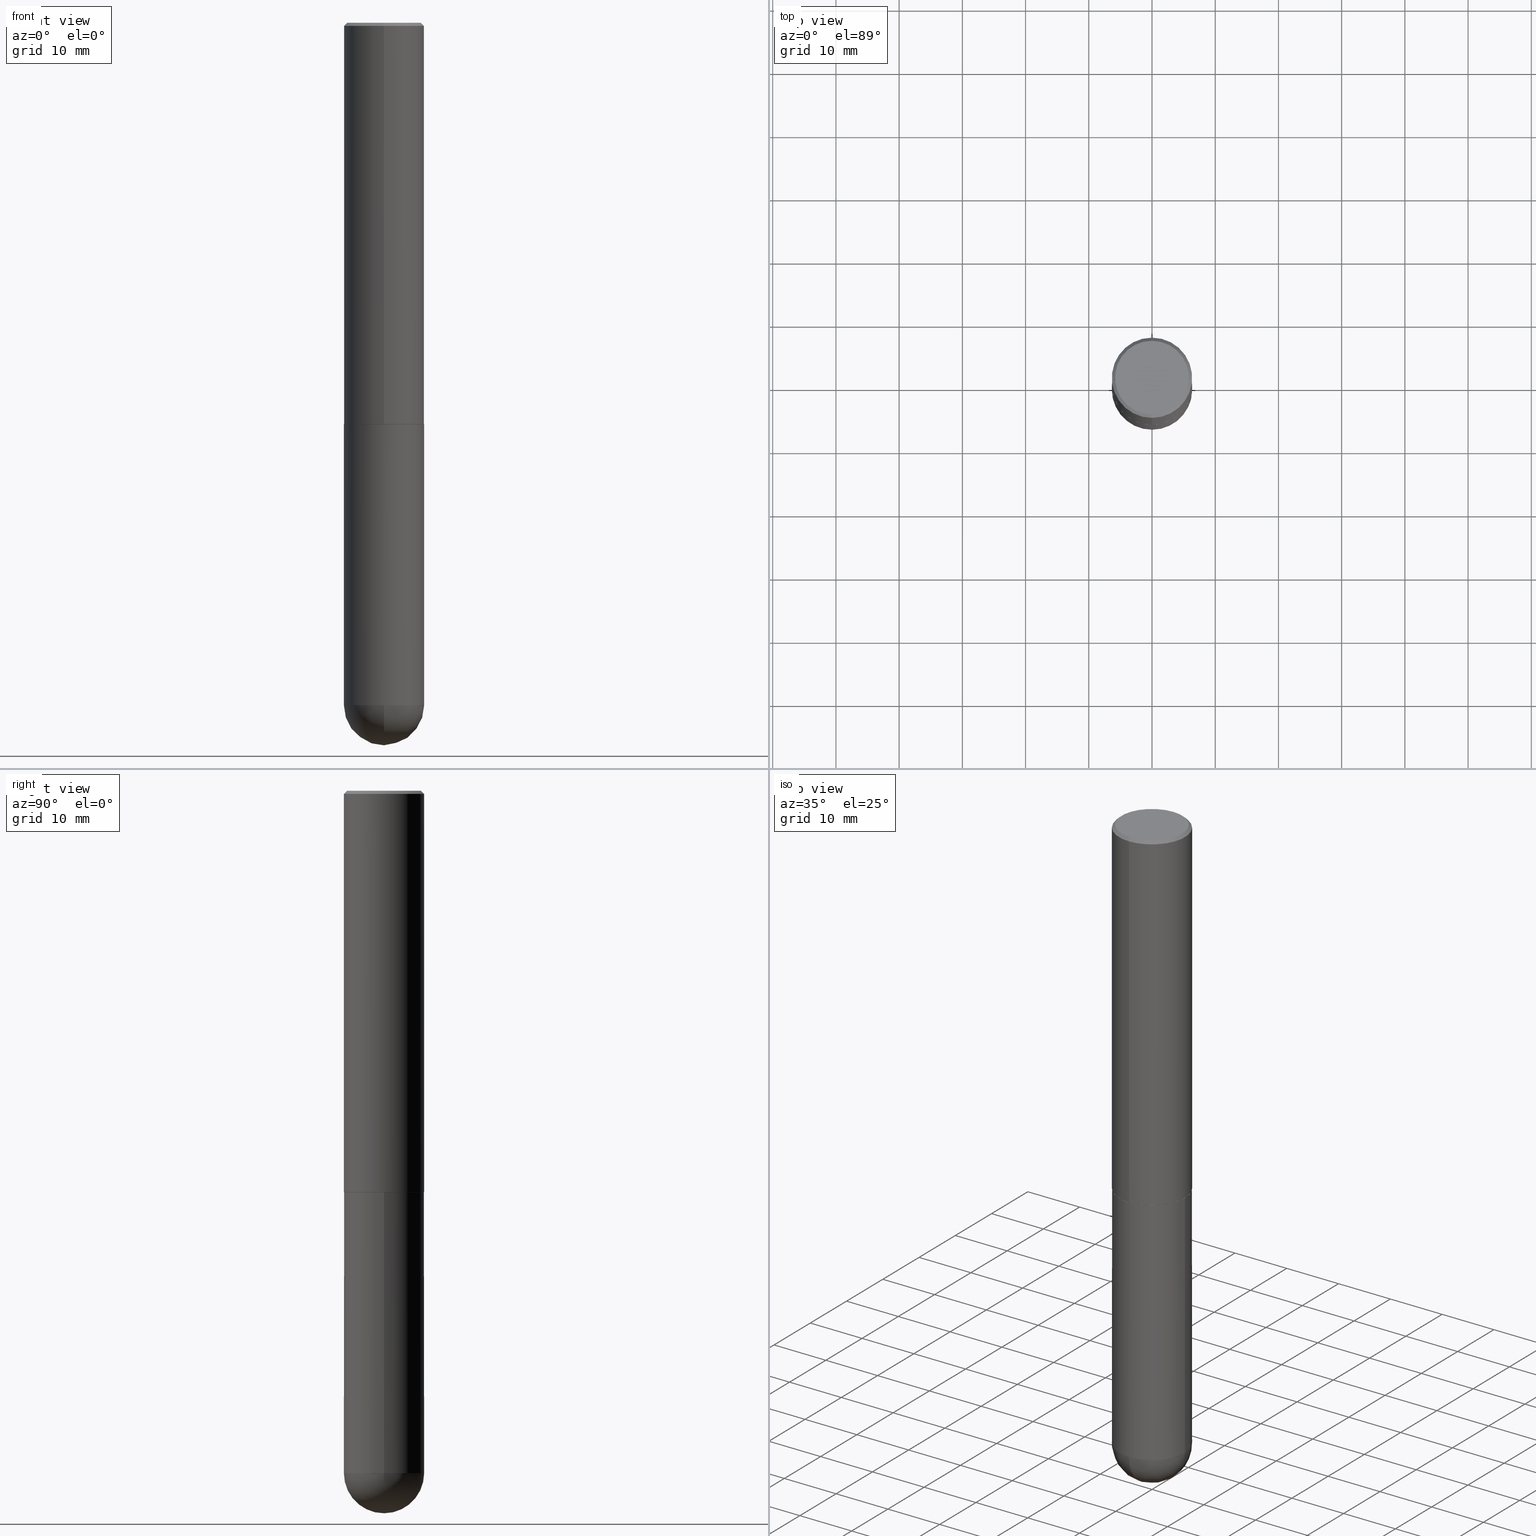
[diagram: canonical four-view strip — front | top / right | iso, engineering-drawing reading convention]
A machine part, canonical four-view strip (front | top / right | iso — engineering-drawing reading convention). The complete STEP part file that produces these views, byte-faithful:
ISO-10303-21;
HEADER;
FILE_DESCRIPTION (( 'STEP AP203' ),
    '1' );
FILE_NAME ('31776.STEP',
    '2024-02-21T16:52:00',
    ( '' ),
    ( '' ),
    'SwSTEP 2.0',
    'SolidWorks 2023',
    '' );
FILE_SCHEMA (( 'CONFIG_CONTROL_DESIGN' ));
ENDSEC;

DATA;
#1 = CARTESIAN_POINT ( 'NONE',  ( 0.000000000000000000, 0.000000000000000000, 0.000000000000000000 ) ) ;
#2 = CARTESIAN_POINT ( 'NONE',  ( -3.026864160722213020E-45, 4.321401483293435708E-31, 1.237721285492321868E-16 ) ) ;
#3 = EDGE_CURVE ( 'NONE', #49, #74, #329, .T. ) ;
#4 = CARTESIAN_POINT ( 'NONE',  ( 6.111338333036800677E-29, -8.725051781310170684E-15, -2.499000000000000110 ) ) ;
#5 = CYLINDRICAL_SURFACE ( 'NONE', #236, 0.2500000000000000000 ) ;
#6 = ADVANCED_FACE ( 'NONE', ( #114 ), #257, .T. ) ;
#7 = COORDINATED_UNIVERSAL_TIME_OFFSET ( 5, 0, .BEHIND. ) ;
#8 = ORIENTED_EDGE ( 'NONE', *, *, #174, .F. ) ;
#9 = APPROVAL ( #99, 'UNSPECIFIED' ) ;
#10 = CIRCLE ( 'NONE', #243, 0.2299999999999998435 ) ;
#11 = AXIS2_PLACEMENT_3D ( 'NONE', #4, #313, #385 ) ;
#12 =( NAMED_UNIT ( * ) SI_UNIT ( $, .STERADIAN. ) SOLID_ANGLE_UNIT ( ) );
#13 = COORDINATED_UNIVERSAL_TIME_OFFSET ( 5, 0, .BEHIND. ) ;
#14 = EDGE_LOOP ( 'NONE', ( #43, #80, #238, #306 ) ) ;
#15 = ORIENTED_EDGE ( 'NONE', *, *, #332, .F. ) ;
#16 = DATE_AND_TIME ( #273, #40 ) ;
#17 = ORIENTED_EDGE ( 'NONE', *, *, #215, .F. ) ;
#18 = ORIENTED_EDGE ( 'NONE', *, *, #334, .T. ) ;
#19 = CARTESIAN_POINT ( 'NONE',  ( 0.2500000000000000000, -1.745740669421566678E-15, 1.219044193948983948E-29 ) ) ;
#20 = PRODUCT_DEFINITION_SHAPE ( 'NONE', 'NONE',  #304 ) ;
#21 = CARTESIAN_POINT ( 'NONE',  ( 1.745740669421669032E-15, 0.2499999999999849842, -4.250000000000001776 ) ) ;
#22 = DIRECTION ( 'NONE',  ( 6.982962677686265922E-15, 1.000000000000000000, -3.491417279435842514E-15 ) ) ;
#23 = LINE ( 'NONE', #182, #104 ) ;
#24 = DIRECTION ( 'NONE',  ( 2.445513538630171527E-29, -3.491417279435842514E-15, -1.000000000000000000 ) ) ;
#25 = CARTESIAN_POINT ( 'NONE',  ( 1.006212264837294429E-28, -1.531297805822341912E-14, -4.250000000000000000 ) ) ;
#26 = CYLINDRICAL_SURFACE ( 'NONE', #67, 0.2500000000000000000 ) ;
#27 = AXIS2_PLACEMENT_3D ( 'NONE', #144, #112, #379 ) ;
#28 = VECTOR ( 'NONE', #279, 39.37007874015748143 ) ;
#29 = DIRECTION ( 'NONE',  ( 2.445513538630171807E-29, -3.491417279435842514E-15, -1.000000000000000000 ) ) ;
#30 = CARTESIAN_POINT ( 'NONE',  ( -1.738757706743818935E-15, -0.2490000000000087421, -2.499999999999999112 ) ) ;
#31 = ADVANCED_FACE ( 'NONE', ( #408 ), #255, .F. ) ;
#32 = CARTESIAN_POINT ( 'NONE',  ( 6.113672015462842613E-29, -8.728703347107864943E-15, -2.500000000000000000 ) ) ;
#33 = DIRECTION ( 'NONE',  ( -2.445468806185136597E-29, 3.491481338843145583E-15, 1.000000000000000000 ) ) ;
#34 = AXIS2_PLACEMENT_3D ( 'NONE', #83, #345, #185 ) ;
#35 = AXIS2_PLACEMENT_3D ( 'NONE', #90, #349, #319 ) ;
#36 = LENGTH_MEASURE_WITH_UNIT ( LENGTH_MEASURE( 0.02539999999999999897 ), #200 );
#37 = LINE ( 'NONE', #233, #336 ) ;
#38 = EDGE_CURVE ( 'NONE', #278, #271, #251, .T. ) ;
#39 = CARTESIAN_POINT ( 'NONE',  ( 1.745740669421566875E-15, 0.2499999999999999167, -0.02000000000000092676 ) ) ;
#40 = LOCAL_TIME ( 11, 52, 0.000000000000000000, #13 ) ;
#41 = ADVANCED_FACE ( 'NONE', ( #213 ), #318, .F. ) ;
#42 = COORDINATED_UNIVERSAL_TIME_OFFSET ( 5, 0, .BEHIND. ) ;
#43 = ORIENTED_EDGE ( 'NONE', *, *, #60, .F. ) ;
#44 = ORIENTED_EDGE ( 'NONE', *, *, #230, .F. ) ;
#45 = LOCAL_TIME ( 11, 52, 0.000000000000000000, #42 ) ;
#46 = ORIENTED_EDGE ( 'NONE', *, *, #230, .T. ) ;
#47 = ADVANCED_FACE ( 'NONE', ( #404 ), #216, .T. ) ;
#48 = ORIENTED_EDGE ( 'NONE', *, *, #161, .T. ) ;
#49 = VERTEX_POINT ( 'NONE', #56 ) ;
#50 = CARTESIAN_POINT ( 'NONE',  ( 1.006212264837294429E-28, -1.531297805822341912E-14, -4.250000000000000000 ) ) ;
#51 = CLOSED_SHELL ( 'NONE', ( #292, #113, #6, #47, #120, #362, #31, #227 ) ) ;
#52 = CARTESIAN_POINT ( 'NONE',  ( 0.000000000000000000, 0.000000000000000000, 0.000000000000000000 ) ) ;
#53 = VECTOR ( 'NONE', #382, 39.37007874015748143 ) ;
#54 = DIRECTION ( 'NONE',  ( 1.000000000000000000, -6.982962677686270655E-15, 0.000000000000000000 ) ) ;
#55 = CARTESIAN_POINT ( 'NONE',  ( -1.715124499442882299E-15, -0.2500000000000000555, -0.01999999999999918510 ) ) ;
#56 = CARTESIAN_POINT ( 'NONE',  ( 1.068417942853397052E-28, -1.617054030794486372E-14, -4.500000000000000888 ) ) ;
#57 = DIRECTION ( 'NONE',  ( -1.000000000000000000, 6.982962677686265922E-15, -4.883557194083113462E-29 ) ) ;
#58 = DIRECTION ( 'NONE',  ( -2.445513538630171807E-29, 3.491417279435842514E-15, 1.000000000000000000 ) ) ;
#59 = DIRECTION ( 'NONE',  ( -6.982962677686265133E-15, -1.000000000000000000, 4.388510833195603583E-15 ) ) ;
#60 = EDGE_CURVE ( 'NONE', #363, #390, #23, .T. ) ;
#61 = AXIS2_PLACEMENT_3D ( 'NONE', #1, #124, #89 ) ;
#62 = AXIS2_PLACEMENT_3D ( 'NONE', #407, #249, #373 ) ;
#63 = DIRECTION ( 'NONE',  ( 1.000000000000000000, -6.982962677686266711E-15, 0.000000000000000000 ) ) ;
#64 = CARTESIAN_POINT ( 'NONE',  ( 1.772804125721511886E-15, 0.2489999999999912561, -2.500000000000001332 ) ) ;
#65 = PERSON_AND_ORGANIZATION ( #195, #187 ) ;
#66 = AXIS2_PLACEMENT_3D ( 'NONE', #247, #223, #309 ) ;
#67 = AXIS2_PLACEMENT_3D ( 'NONE', #148, #283, #119 ) ;
#68 = CALENDAR_DATE ( 2024, 21, 2 ) ;
#69 = DATE_AND_TIME ( #68, #130 ) ;
#70 = UNCERTAINTY_MEASURE_WITH_UNIT (LENGTH_MEASURE( 1.000000000000000082E-05 ), #94, 'distance_accuracy_value', 'NONE');
#71 = AXIS2_PLACEMENT_3D ( 'NONE', #254, #125, #92 ) ;
#72 = PERSON_AND_ORGANIZATION ( #195, #187 ) ;
#73 = ORIENTED_EDGE ( 'NONE', *, *, #340, .T. ) ;
#74 = VERTEX_POINT ( 'NONE', #21 ) ;
#75 = EDGE_CURVE ( 'NONE', #246, #390, #374, .T. ) ;
#76 = ORIENTED_EDGE ( 'NONE', *, *, #3, .F. ) ;
#77 = CC_DESIGN_DATE_AND_TIME_ASSIGNMENT ( #128, #262, ( #304 ) ) ;
#78 = SECURITY_CLASSIFICATION_LEVEL ( 'unclassified' ) ;
#79 = AXIS2_PLACEMENT_3D ( 'NONE', #2, #289, #342 ) ;
#80 = ORIENTED_EDGE ( 'NONE', *, *, #197, .T. ) ;
#81 = PERSON_AND_ORGANIZATION ( #195, #187 ) ;
#82 = ORIENTED_EDGE ( 'NONE', *, *, #136, .T. ) ;
#83 = CARTESIAN_POINT ( 'NONE',  ( 4.891027077260356751E-31, -6.982834558871704009E-17, -0.02000000000000005593 ) ) ;
#84 = DIRECTION ( 'NONE',  ( -2.445513538630171807E-29, 3.491417279435842514E-15, 1.000000000000000000 ) ) ;
#85 = CARTESIAN_POINT ( 'NONE',  ( -0.2500000000000000000, -1.000739267919536563E-14, -2.500000000000000000 ) ) ;
#86 = AXIS2_PLACEMENT_3D ( 'NONE', #256, #281, #312 ) ;
#87 = CARTESIAN_POINT ( 'NONE',  ( 6.113783846575430919E-29, -8.728543198589606481E-15, -2.500000000000000000 ) ) ;
#88 = EDGE_CURVE ( 'NONE', #74, #278, #186, .T. ) ;
#89 = DIRECTION ( 'NONE',  ( -6.982962677686266711E-15, -1.000000000000000000, 3.491417279435842908E-15 ) ) ;
#90 = CARTESIAN_POINT ( 'NONE',  ( 4.891027077260356751E-31, -6.982834558871704009E-17, -0.02000000000000005593 ) ) ;
#91 = DIRECTION ( 'NONE',  ( -6.982962677686265922E-15, -1.000000000000000000, 4.370956789862816416E-15 ) ) ;
#92 = DIRECTION ( 'NONE',  ( 1.000000000000000000, -6.982962677686270655E-15, 0.000000000000000000 ) ) ;
#93 = CC_DESIGN_SECURITY_CLASSIFICATION ( #410, ( #250 ) ) ;
#94 =( CONVERSION_BASED_UNIT ( 'INCH', #36 ) LENGTH_UNIT ( ) NAMED_UNIT ( #405 ) );
#95 = DIRECTION ( 'NONE',  ( -6.982962677686265133E-15, -1.000000000000000000, 4.388510833195603583E-15 ) ) ;
#96 = ORIENTED_EDGE ( 'NONE', *, *, #370, .F. ) ;
#97 = APPROVAL_STATUS ( 'not_yet_approved' ) ;
#98 = APPROVAL_PERSON_ORGANIZATION ( #389, #9, #166 ) ;
#99 = APPROVAL_STATUS ( 'not_yet_approved' ) ;
#100 = MANIFOLD_SOLID_BREP ( 'Body-Move/Copy2[1]', #151 ) ;
#101 = EDGE_CURVE ( 'NONE', #398, #339, #10, .T. ) ;
#102 = CALENDAR_DATE ( 2024, 21, 2 ) ;
#103 = ORIENTED_EDGE ( 'NONE', *, *, #75, .F. ) ;
#104 = VECTOR ( 'NONE', #58, 39.37007874015748143 ) ;
#105 = CIRCLE ( 'NONE', #79, 0.2299999999999998435 ) ;
#106 = PERSON_AND_ORGANIZATION ( #195, #187 ) ;
#107 = ORIENTED_EDGE ( 'NONE', *, *, #136, .F. ) ;
#108 = ORIENTED_EDGE ( 'NONE', *, *, #101, .F. ) ;
#109 = EDGE_LOOP ( 'NONE', ( #275, #274 ) ) ;
#110 = CIRCLE ( 'NONE', #264, 0.2500000000000000000 ) ;
#111 = ORIENTED_EDGE ( 'NONE', *, *, #232, .F. ) ;
#112 = DIRECTION ( 'NONE',  ( 2.445513538630171807E-29, -3.491417279435842514E-15, -1.000000000000000000 ) ) ;
#113 = ADVANCED_FACE ( 'NONE', ( #406 ), #217, .T. ) ;
#114 = FACE_OUTER_BOUND ( 'NONE', #241, .T. ) ;
#115 = CARTESIAN_POINT ( 'NONE',  ( 1.006212264837294429E-28, -1.531297805822341912E-14, -4.250000000000000000 ) ) ;
#116 = DIRECTION ( 'NONE',  ( 1.000000000000000000, -6.982962677686265922E-15, 4.883557194083112340E-29 ) ) ;
#117 = AXIS2_PLACEMENT_3D ( 'NONE', #87, #248, #371 ) ;
#118 = CONICAL_SURFACE ( 'NONE', #323, 0.2489999999999999991, 0.7853981633976873100 ) ;
#119 = DIRECTION ( 'NONE',  ( 1.000000000000000000, -6.982962677686266711E-15, 4.876176775795935793E-29 ) ) ;
#120 = ADVANCED_FACE ( 'NONE', ( #343 ), #180, .T. ) ;
#121 = CARTESIAN_POINT ( 'NONE',  ( 6.113672015462842613E-29, -8.728703347107864943E-15, -2.500000000000000000 ) ) ;
#122 = CARTESIAN_POINT ( 'NONE',  ( -1.738757706743818935E-15, -0.2490000000000087421, -2.499999999999999112 ) ) ;
#123 = APPROVAL ( #305, 'UNSPECIFIED' ) ;
#124 = DIRECTION ( 'NONE',  ( -2.445513538630171807E-29, 3.491417279435842514E-15, 1.000000000000000000 ) ) ;
#125 = DIRECTION ( 'NONE',  ( -2.445468806185136597E-29, 3.491481338843145583E-15, 1.000000000000000000 ) ) ;
#126 = DIRECTION ( 'NONE',  ( -1.000000000000000000, 7.105427357601001070E-15, -4.926315508542082329E-29 ) ) ;
#127 = SPHERICAL_SURFACE ( 'NONE', #203, 0.2500000000000001110 ) ;
#128 = DATE_AND_TIME ( #102, #170 ) ;
#129 = ORIENTED_EDGE ( 'NONE', *, *, #161, .F. ) ;
#130 = LOCAL_TIME ( 11, 52, 0.000000000000000000, #162 ) ;
#131 = EDGE_CURVE ( 'NONE', #366, #363, #298, .T. ) ;
#132 = CARTESIAN_POINT ( 'NONE',  ( -1.646519519465166573E-15, -0.2299999999999998435, 9.267981028194753931E-16 ) ) ;
#133 = EDGE_LOOP ( 'NONE', ( #141, #111 ) ) ;
#134 = PERSON_AND_ORGANIZATION_ROLE ( 'classification_officer' ) ;
#135 = ORIENTED_EDGE ( 'NONE', *, *, #38, .F. ) ;
#136 = EDGE_CURVE ( 'NONE', #398, #246, #282, .T. ) ;
#137 = AXIS2_PLACEMENT_3D ( 'NONE', #314, #381, #91 ) ;
#138 = AXIS2_PLACEMENT_3D ( 'NONE', #50, #126, #320 ) ;
#139 = ORIENTED_EDGE ( 'NONE', *, *, #88, .F. ) ;
#140 = VERTEX_POINT ( 'NONE', #351 ) ;
#141 = ORIENTED_EDGE ( 'NONE', *, *, #267, .F. ) ;
#142 = AXIS2_PLACEMENT_3D ( 'NONE', #25, #116, #155 ) ;
#143 = AXIS2_PLACEMENT_3D ( 'NONE', #184, #380, #315 ) ;
#144 = CARTESIAN_POINT ( 'NONE',  ( 4.891027077260356751E-31, -6.982834558871704009E-17, -0.02000000000000005593 ) ) ;
#145 = ORIENTED_EDGE ( 'NONE', *, *, #60, .T. ) ;
#146 = LINE ( 'NONE', #122, #53 ) ;
#147 = DIRECTION ( 'NONE',  ( -6.982962677686266711E-15, -1.000000000000000000, 3.491417279435842908E-15 ) ) ;
#148 = CARTESIAN_POINT ( 'NONE',  ( 0.000000000000000000, 0.000000000000000000, 0.000000000000000000 ) ) ;
#149 = EDGE_CURVE ( 'NONE', #302, #271, #401, .T. ) ;
#150 = DIRECTION ( 'NONE',  ( -6.982962677686265922E-15, -1.000000000000000000, 3.491417279435842514E-15 ) ) ;
#151 = CLOSED_SHELL ( 'NONE', ( #287, #300, #220, #41, #202 ) ) ;
#152 = VECTOR ( 'NONE', #153, 39.37007874015748143 ) ;
#153 = DIRECTION ( 'NONE',  ( 5.024295867789263036E-15, 0.7071067811867189912, 0.7071067811863760433 ) ) ;
#154 = CC_DESIGN_PERSON_AND_ORGANIZATION_ASSIGNMENT ( #325, #265, ( #304 ) ) ;
#155 = DIRECTION ( 'NONE',  ( 6.982962677686266711E-15, 1.000000000000000000, 0.000000000000000000 ) ) ;
#156 = FACE_OUTER_BOUND ( 'NONE', #280, .T. ) ;
#157 = DIRECTION ( 'NONE',  ( 1.000000000000000000, -6.982962677686266711E-15, 0.000000000000000000 ) ) ;
#158 = DIRECTION ( 'NONE',  ( 1.000000000000000000, -6.982962677686266711E-15, 4.876176775795935793E-29 ) ) ;
#159 = CARTESIAN_POINT ( 'NONE',  ( 1.745740669421566875E-15, 0.2499999999999999167, -0.02000000000000092676 ) ) ;
#160 = AXIS2_PLACEMENT_3D ( 'NONE', #412, #24, #22 ) ;
#161 = EDGE_CURVE ( 'NONE', #140, #302, #189, .T. ) ;
#162 = COORDINATED_UNIVERSAL_TIME_OFFSET ( 5, 0, .BEHIND. ) ;
#163 = VECTOR ( 'NONE', #225, 39.37007874015748143 ) ;
#164 = APPROVAL_PERSON_ORGANIZATION ( #295, #183, #358 ) ;
#165 = CARTESIAN_POINT ( 'NONE',  ( 1.776356839400282414E-15, 0.2499999999999915345, -2.499000000000001442 ) ) ;
#166 = APPROVAL_ROLE ( '' ) ;
#167 = ORIENTED_EDGE ( 'NONE', *, *, #267, .T. ) ;
#168 = CC_DESIGN_PERSON_AND_ORGANIZATION_ASSIGNMENT ( #81, #134, ( #410 ) ) ;
#169 = ORIENTED_EDGE ( 'NONE', *, *, #353, .F. ) ;
#170 = LOCAL_TIME ( 11, 52, 0.000000000000000000, #7 ) ;
#171 = PERSON_AND_ORGANIZATION ( #195, #187 ) ;
#172 = ORIENTED_EDGE ( 'NONE', *, *, #131, .F. ) ;
#173 = ORIENTED_EDGE ( 'NONE', *, *, #239, .F. ) ;
#174 = EDGE_CURVE ( 'NONE', #49, #212, #258, .T. ) ;
#175 = APPROVAL_DATE_TIME ( #240, #9 ) ;
#176 = EDGE_LOOP ( 'NONE', ( #15, #205, #46, #266 ) ) ;
#177 =( GEOMETRIC_REPRESENTATION_CONTEXT ( 3 ) GLOBAL_UNCERTAINTY_ASSIGNED_CONTEXT ( ( #70 ) ) GLOBAL_UNIT_ASSIGNED_CONTEXT ( ( #94, #294, #12 ) ) REPRESENTATION_CONTEXT ( 'NONE', 'WORKASPACE' ) );
#178 = CARTESIAN_POINT ( 'NONE',  ( 4.891027077260356751E-31, -6.982834558871704009E-17, -0.02000000000000005593 ) ) ;
#179 = DIRECTION ( 'NONE',  ( -2.445468806185136597E-29, 3.491481338843145583E-15, 1.000000000000000000 ) ) ;
#180 = CYLINDRICAL_SURFACE ( 'NONE', #356, 0.2500000000000001110 ) ;
#181 = FACE_OUTER_BOUND ( 'NONE', #303, .T. ) ;
#182 = CARTESIAN_POINT ( 'NONE',  ( 1.776356839400251254E-15, 0.2500000000000001110, -8.728543198589611215E-16 ) ) ;
#183 = APPROVAL ( #97, 'UNSPECIFIED' ) ;
#184 = CARTESIAN_POINT ( 'NONE',  ( 1.006212264837294429E-28, -1.531297805822341912E-14, -4.250000000000000000 ) ) ;
#185 = DIRECTION ( 'NONE',  ( -6.982962677686265922E-15, -1.000000000000000000, 3.483106191921935554E-15 ) ) ;
#186 = CIRCLE ( 'NONE', #193, 0.2500000000000000000 ) ;
#187 = ORGANIZATION ( 'UNSPECIFIED', 'UNSPECIFIED', '' ) ;
#188 = CARTESIAN_POINT ( 'NONE',  ( 1.769251412042710396E-15, 0.2489999999999912561, -2.500000000000001332 ) ) ;
#189 = LINE ( 'NONE', #19, #28 ) ;
#190 = EDGE_CURVE ( 'NONE', #271, #302, #110, .T. ) ;
#191 = DIRECTION ( 'NONE',  ( 1.000000000000000000, -6.982962677686270655E-15, 0.000000000000000000 ) ) ;
#192 = CARTESIAN_POINT ( 'NONE',  ( 1.675911042644703379E-15, 0.2299999999999998435, -6.792538457210110194E-16 ) ) ;
#193 = AXIS2_PLACEMENT_3D ( 'NONE', #285, #372, #54 ) ;
#194 = AXIS2_PLACEMENT_3D ( 'NONE', #121, #253, #63 ) ;
#195 = PERSON ( 'UNSPECIFIED', 'UNSPECIFIED', 'UNSPECIFIED', ('UNSPECIFIED'), ('UNSPECIFIED'), ('UNSPECIFIED') ) ;
#196 = CIRCLE ( 'NONE', #71, 0.2500000000000000000 ) ;
#197 = EDGE_CURVE ( 'NONE', #363, #366, #394, .T. ) ;
#198 = CARTESIAN_POINT ( 'NONE',  ( -1.745740669421507316E-15, -0.2500000000000089928, -2.498999999999999222 ) ) ;
#199 = ORIENTED_EDGE ( 'NONE', *, *, #75, .T. ) ;
#200 =( LENGTH_UNIT ( ) NAMED_UNIT ( * ) SI_UNIT ( $, .METRE. ) );
#201 = EDGE_LOOP ( 'NONE', ( #76, #208, #263, #139 ) ) ;
#202 = ADVANCED_FACE ( 'NONE', ( #181 ), #5, .T. ) ;
#203 = AXIS2_PLACEMENT_3D ( 'NONE', #115, #57, #310 ) ;
#204 = APPROVAL_DATE_TIME ( #360, #123 ) ;
#205 = ORIENTED_EDGE ( 'NONE', *, *, #232, .T. ) ;
#206 = PERSON_AND_ORGANIZATION_ROLE ( 'creator' ) ;
#207 = ORIENTED_EDGE ( 'NONE', *, *, #149, .F. ) ;
#208 = ORIENTED_EDGE ( 'NONE', *, *, #174, .T. ) ;
#209 = VERTEX_POINT ( 'NONE', #64 ) ;
#210 = EDGE_CURVE ( 'NONE', #278, #212, #244, .T. ) ;
#211 = DATE_TIME_ROLE ( 'classification_date' ) ;
#212 = VERTEX_POINT ( 'NONE', #409 ) ;
#213 = FACE_OUTER_BOUND ( 'NONE', #109, .T. ) ;
#214 = DIRECTION ( 'NONE',  ( -2.445468806185136597E-29, 3.491481338843145583E-15, 1.000000000000000000 ) ) ;
#215 = EDGE_CURVE ( 'NONE', #339, #398, #105, .T. ) ;
#216 = CONICAL_SURFACE ( 'NONE', #316, 0.2500000000000000000, 0.7853981633974479459 ) ;
#217 = CYLINDRICAL_SURFACE ( 'NONE', #61, 0.2500000000000001110 ) ;
#218 = FACE_OUTER_BOUND ( 'NONE', #326, .T. ) ;
#219 = PRODUCT ( '31776', '31776', '', ( #260 ) ) ;
#220 = ADVANCED_FACE ( 'NONE', ( #259 ), #127, .T. ) ;
#221 = DIRECTION ( 'NONE',  ( -2.445468806185136877E-29, 3.491481338843145188E-15, 1.000000000000000000 ) ) ;
#222 = CARTESIAN_POINT ( 'NONE',  ( 0.2500000000000000000, -1.047444401652943162E-14, -2.500000000000000000 ) ) ;
#223 = DIRECTION ( 'NONE',  ( 2.438088387897960049E-29, -3.491481338843145188E-15, -1.000000000000000000 ) ) ;
#224 = CARTESIAN_POINT ( 'NONE',  ( -0.2500000000000000000, -1.000739267919536879E-14, -4.250000000000000000 ) ) ;
#225 = DIRECTION ( 'NONE',  ( -4.851104656540961908E-15, -0.7071067811865496822, -0.7071067811865453523 ) ) ;
#226 = CARTESIAN_POINT ( 'NONE',  ( 6.113783846575430919E-29, -8.728543198589606481E-15, -2.500000000000000000 ) ) ;
#227 = ADVANCED_FACE ( 'NONE', ( #352 ), #344, .F. ) ;
#228 = APPLICATION_PROTOCOL_DEFINITION ( 'international standard', 'config_control_design', 1994, #355 ) ;
#229 = ORIENTED_EDGE ( 'NONE', *, *, #190, .F. ) ;
#230 = EDGE_CURVE ( 'NONE', #337, #366, #146, .T. ) ;
#231 = APPROVAL_PERSON_ORGANIZATION ( #171, #123, #338 ) ;
#232 = EDGE_CURVE ( 'NONE', #209, #337, #272, .T. ) ;
#233 = CARTESIAN_POINT ( 'NONE',  ( -1.745740669421567467E-15, -0.2500000000000001110, 8.728543198589611215E-16 ) ) ;
#234 = APPLICATION_PROTOCOL_DEFINITION ( 'international standard', 'config_control_design', 1994, #403 ) ;
#235 = ORIENTED_EDGE ( 'NONE', *, *, #332, .T. ) ;
#236 = AXIS2_PLACEMENT_3D ( 'NONE', #52, #179, #158 ) ;
#237 = EDGE_LOOP ( 'NONE', ( #8, #333, #392, #173 ) ) ;
#238 = ORIENTED_EDGE ( 'NONE', *, *, #353, .T. ) ;
#239 = EDGE_CURVE ( 'NONE', #212, #140, #196, .T. ) ;
#240 = DATE_AND_TIME ( #397, #367 ) ;
#241 = EDGE_LOOP ( 'NONE', ( #108, #82, #199, #96 ) ) ;
#242 = MANIFOLD_SOLID_BREP ( 'Body-Move/Copy2[2]', #51 ) ;
#243 = AXIS2_PLACEMENT_3D ( 'NONE', #311, #84, #150 ) ;
#244 = CIRCLE ( 'NONE', #330, 0.2500000000000000000 ) ;
#245 = PERSON_AND_ORGANIZATION_ROLE ( 'design_supplier' ) ;
#246 = VERTEX_POINT ( 'NONE', #55 ) ;
#247 = CARTESIAN_POINT ( 'NONE',  ( 1.745740669421627617E-15, 0.2499999999999912570, -2.500000000000001332 ) ) ;
#248 = DIRECTION ( 'NONE',  ( -2.445513538630171527E-29, 3.491417279435842514E-15, 1.000000000000000000 ) ) ;
#249 = DIRECTION ( 'NONE',  ( -2.445513538630171807E-29, 3.491417279435842514E-15, 1.000000000000000000 ) ) ;
#250 = PRODUCT_DEFINITION_FORMATION_WITH_SPECIFIED_SOURCE ( 'ANY', '', #219, .NOT_KNOWN. ) ;
#251 = LINE ( 'NONE', #288, #383 ) ;
#252 = DIRECTION ( 'NONE',  ( -2.445513538630171807E-29, 3.491417279435842514E-15, 1.000000000000000000 ) ) ;
#253 = DIRECTION ( 'NONE',  ( -2.445468806185136597E-29, 3.491481338843145583E-15, 1.000000000000000000 ) ) ;
#254 = CARTESIAN_POINT ( 'NONE',  ( 1.039324242628683054E-28, -1.483879569008337040E-14, -4.250000000000000000 ) ) ;
#255 = PLANE ( 'NONE',  #117 ) ;
#256 = CARTESIAN_POINT ( 'NONE',  ( 6.113783846575430919E-29, -8.728543198589606481E-15, -2.500000000000000000 ) ) ;
#257 = CONICAL_SURFACE ( 'NONE', #27, 0.2500000000000000000, 0.7853981633974479459 ) ;
#258 = CIRCLE ( 'NONE', #138, 0.2500000000000001110 ) ;
#259 = FACE_OUTER_BOUND ( 'NONE', #237, .T. ) ;
#260 = MECHANICAL_CONTEXT ( 'NONE', #355, 'mechanical' ) ;
#261 = CARTESIAN_POINT ( 'NONE',  ( 0.000000000000000000, 0.000000000000000000, 0.000000000000000000 ) ) ;
#262 = DATE_TIME_ROLE ( 'creation_date' ) ;
#263 = ORIENTED_EDGE ( 'NONE', *, *, #210, .F. ) ;
#264 = AXIS2_PLACEMENT_3D ( 'NONE', #32, #290, #157 ) ;
#265 = PERSON_AND_ORGANIZATION_ROLE ( 'creator' ) ;
#266 = ORIENTED_EDGE ( 'NONE', *, *, #197, .F. ) ;
#267 = EDGE_CURVE ( 'NONE', #337, #209, #388, .T. ) ;
#268 = DIRECTION ( 'NONE',  ( -2.445513538630171807E-29, 3.491417279435842514E-15, 1.000000000000000000 ) ) ;
#269 = EDGE_LOOP ( 'NONE', ( #365, #361 ) ) ;
#270 = SHAPE_DEFINITION_REPRESENTATION ( #20, #399 ) ;
#271 = VERTEX_POINT ( 'NONE', #85 ) ;
#272 = CIRCLE ( 'NONE', #86, 0.2489999999999999991 ) ;
#273 = CALENDAR_DATE ( 2024, 21, 2 ) ;
#274 = ORIENTED_EDGE ( 'NONE', *, *, #190, .T. ) ;
#275 = ORIENTED_EDGE ( 'NONE', *, *, #149, .T. ) ;
#276 = CC_DESIGN_DATE_AND_TIME_ASSIGNMENT ( #16, #211, ( #410 ) ) ;
#277 = CALENDAR_DATE ( 2024, 21, 2 ) ;
#278 = VERTEX_POINT ( 'NONE', #224 ) ;
#279 = DIRECTION ( 'NONE',  ( -2.445468806185136877E-29, 3.491481338843145188E-15, 1.000000000000000000 ) ) ;
#280 = EDGE_LOOP ( 'NONE', ( #167, #235, #172, #44 ) ) ;
#281 = DIRECTION ( 'NONE',  ( -2.445513538630171807E-29, 3.491417279435842514E-15, 1.000000000000000000 ) ) ;
#282 = LINE ( 'NONE', #376, #163 ) ;
#283 = DIRECTION ( 'NONE',  ( -2.445468806185136597E-29, 3.491481338843145583E-15, 1.000000000000000000 ) ) ;
#284 = CC_DESIGN_APPROVAL ( #123, ( #410 ) ) ;
#285 = CARTESIAN_POINT ( 'NONE',  ( 1.039324242628683054E-28, -1.483879569008337040E-14, -4.250000000000000000 ) ) ;
#286 = DIRECTION ( 'NONE',  ( 1.000000000000000000, -6.982962677686270655E-15, 0.000000000000000000 ) ) ;
#287 = ADVANCED_FACE ( 'NONE', ( #218 ), #26, .T. ) ;
#288 = CARTESIAN_POINT ( 'NONE',  ( -0.2500000000000000000, 1.776356839400250465E-15, -1.229733772563726445E-29 ) ) ;
#289 = DIRECTION ( 'NONE',  ( -2.445513538630171807E-29, 3.491417279435842514E-15, 1.000000000000000000 ) ) ;
#290 = DIRECTION ( 'NONE',  ( -2.445468806185136597E-29, 3.491481338843145583E-15, 1.000000000000000000 ) ) ;
#291 = CARTESIAN_POINT ( 'NONE',  ( 1.039324242628683054E-28, -1.483879569008337040E-14, -4.250000000000000000 ) ) ;
#292 = ADVANCED_FACE ( 'NONE', ( #156 ), #350, .T. ) ;
#293 = CIRCLE ( 'NONE', #308, 0.2500000000000000000 ) ;
#294 =( NAMED_UNIT ( * ) PLANE_ANGLE_UNIT ( ) SI_UNIT ( $, .RADIAN. ) );
#295 = PERSON_AND_ORGANIZATION ( #195, #187 ) ;
#296 = APPROVAL_DATE_TIME ( #69, #183 ) ;
#297 = CARTESIAN_POINT ( 'NONE',  ( 6.113783846575430919E-29, -8.728543198589606481E-15, -2.500000000000000000 ) ) ;
#298 = CIRCLE ( 'NONE', #137, 0.2500000000000002776 ) ;
#299 = CIRCLE ( 'NONE', #35, 0.2500000000000000000 ) ;
#300 = ADVANCED_FACE ( 'NONE', ( #377 ), #346, .T. ) ;
#301 = ORIENTED_EDGE ( 'NONE', *, *, #370, .T. ) ;
#302 = VERTEX_POINT ( 'NONE', #222 ) ;
#303 = EDGE_LOOP ( 'NONE', ( #135, #331, #400, #48, #229 ) ) ;
#304 = PRODUCT_DEFINITION ( 'UNKNOWN', '', #250, #395 ) ;
#305 = APPROVAL_STATUS ( 'not_yet_approved' ) ;
#306 = ORIENTED_EDGE ( 'NONE', *, *, #334, .F. ) ;
#307 = ORIENTED_EDGE ( 'NONE', *, *, #38, .T. ) ;
#308 = AXIS2_PLACEMENT_3D ( 'NONE', #322, #33, #191 ) ;
#309 = DIRECTION ( 'NONE',  ( -1.000000000000000000, 6.982962677686265922E-15, -4.876176775795935793E-29 ) ) ;
#310 = DIRECTION ( 'NONE',  ( 6.982962677686265922E-15, 1.000000000000000000, -4.370956789862818783E-15 ) ) ;
#311 = CARTESIAN_POINT ( 'NONE',  ( -3.026864160722213020E-45, 4.321401483293435708E-31, 1.237721285492321868E-16 ) ) ;
#312 = DIRECTION ( 'NONE',  ( -6.982962677686265133E-15, -1.000000000000000000, 4.388510833195603583E-15 ) ) ;
#313 = DIRECTION ( 'NONE',  ( -2.445513538630171807E-29, 3.491417279435842514E-15, 1.000000000000000000 ) ) ;
#314 = CARTESIAN_POINT ( 'NONE',  ( 6.111338333036800677E-29, -8.725051781310170684E-15, -2.499000000000000110 ) ) ;
#315 = DIRECTION ( 'NONE',  ( 6.982962677686265922E-15, 1.000000000000000000, -4.370956789862818783E-15 ) ) ;
#316 = AXIS2_PLACEMENT_3D ( 'NONE', #178, #29, #347 ) ;
#317 = AXIS2_PLACEMENT_3D ( 'NONE', #226, #252, #59 ) ;
#318 = PLANE ( 'NONE',  #66 ) ;
#319 = DIRECTION ( 'NONE',  ( -6.982962677686265922E-15, -1.000000000000000000, 3.483106191921935554E-15 ) ) ;
#320 = DIRECTION ( 'NONE',  ( -7.105427357601001859E-15, -1.000000000000000000, 0.000000000000000000 ) ) ;
#321 = LINE ( 'NONE', #188, #152 ) ;
#322 = CARTESIAN_POINT ( 'NONE',  ( 1.039324242628683054E-28, -1.483879569008337040E-14, -4.250000000000000000 ) ) ;
#323 = AXIS2_PLACEMENT_3D ( 'NONE', #297, #386, #95 ) ;
#324 = DIRECTION ( 'NONE',  ( 4.937700262164545676E-15, 0.7071067811865447972, -0.7071067811865502373 ) ) ;
#325 = PERSON_AND_ORGANIZATION ( #195, #187 ) ;
#326 = EDGE_LOOP ( 'NONE', ( #369, #307, #207, #129, #73 ) ) ;
#327 = DIRECTION ( 'NONE',  ( 1.000000000000000000, 0.000000000000000000, 0.000000000000000000 ) ) ;
#328 = FACE_OUTER_BOUND ( 'NONE', #176, .T. ) ;
#329 = CIRCLE ( 'NONE', #142, 0.2500000000000001110 ) ;
#330 = AXIS2_PLACEMENT_3D ( 'NONE', #291, #214, #286 ) ;
#331 = ORIENTED_EDGE ( 'NONE', *, *, #210, .T. ) ;
#332 = EDGE_CURVE ( 'NONE', #209, #363, #321, .T. ) ;
#333 = ORIENTED_EDGE ( 'NONE', *, *, #3, .T. ) ;
#334 = EDGE_CURVE ( 'NONE', #390, #246, #299, .T. ) ;
#335 = EDGE_LOOP ( 'NONE', ( #107, #17, #301, #18 ) ) ;
#336 = VECTOR ( 'NONE', #268, 39.37007874015748143 ) ;
#337 = VERTEX_POINT ( 'NONE', #30 ) ;
#338 = APPROVAL_ROLE ( '' ) ;
#339 = VERTEX_POINT ( 'NONE', #192 ) ;
#340 = EDGE_CURVE ( 'NONE', #140, #74, #293, .T. ) ;
#341 = DIRECTION ( 'NONE',  ( -2.445513538630171807E-29, 3.491417279435842514E-15, 1.000000000000000000 ) ) ;
#342 = DIRECTION ( 'NONE',  ( -6.982962677686265922E-15, -1.000000000000000000, 3.491417279435842514E-15 ) ) ;
#343 = FACE_OUTER_BOUND ( 'NONE', #14, .T. ) ;
#344 = PLANE ( 'NONE',  #160 ) ;
#345 = DIRECTION ( 'NONE',  ( -2.445513538630171807E-29, 3.491417279435842514E-15, 1.000000000000000000 ) ) ;
#346 = SPHERICAL_SURFACE ( 'NONE', #143, 0.2500000000000001110 ) ;
#347 = DIRECTION ( 'NONE',  ( 6.982962677686265922E-15, 1.000000000000000000, -3.483106191921935554E-15 ) ) ;
#348 = CC_DESIGN_PERSON_AND_ORGANIZATION_ASSIGNMENT ( #106, #245, ( #250 ) ) ;
#349 = DIRECTION ( 'NONE',  ( -2.445513538630171807E-29, 3.491417279435842514E-15, 1.000000000000000000 ) ) ;
#350 = CONICAL_SURFACE ( 'NONE', #317, 0.2489999999999999991, 0.7853981633976873100 ) ;
#351 = CARTESIAN_POINT ( 'NONE',  ( 0.2500000000000000000, -1.352949018801718751E-14, -4.250000000000000000 ) ) ;
#352 = FACE_OUTER_BOUND ( 'NONE', #269, .T. ) ;
#353 = EDGE_CURVE ( 'NONE', #366, #246, #37, .T. ) ;
#354 = DIRECTION ( 'NONE',  ( 0.000000000000000000, 0.000000000000000000, 1.000000000000000000 ) ) ;
#355 = APPLICATION_CONTEXT ( 'configuration controlled 3d designs of mechanical parts and assemblies' ) ;
#356 = AXIS2_PLACEMENT_3D ( 'NONE', #411, #341, #147 ) ;
#357 = CC_DESIGN_APPROVAL ( #183, ( #304 ) ) ;
#358 = APPROVAL_ROLE ( '' ) ;
#359 = LINE ( 'NONE', #39, #384 ) ;
#360 = DATE_AND_TIME ( #277, #45 ) ;
#361 = ORIENTED_EDGE ( 'NONE', *, *, #101, .T. ) ;
#362 = ADVANCED_FACE ( 'NONE', ( #328 ), #118, .T. ) ;
#363 = VERTEX_POINT ( 'NONE', #165 ) ;
#364 = CC_DESIGN_PERSON_AND_ORGANIZATION_ASSIGNMENT ( #72, #206, ( #250 ) ) ;
#365 = ORIENTED_EDGE ( 'NONE', *, *, #215, .T. ) ;
#366 = VERTEX_POINT ( 'NONE', #198 ) ;
#367 = LOCAL_TIME ( 11, 52, 0.000000000000000000, #368 ) ;
#368 = COORDINATED_UNIVERSAL_TIME_OFFSET ( 5, 0, .BEHIND. ) ;
#369 = ORIENTED_EDGE ( 'NONE', *, *, #88, .T. ) ;
#370 = EDGE_CURVE ( 'NONE', #339, #390, #359, .T. ) ;
#371 = DIRECTION ( 'NONE',  ( -6.982962677686265922E-15, -1.000000000000000000, 3.491417279435842514E-15 ) ) ;
#372 = DIRECTION ( 'NONE',  ( -2.445468806185136597E-29, 3.491481338843145583E-15, 1.000000000000000000 ) ) ;
#373 = DIRECTION ( 'NONE',  ( -6.982962677686265133E-15, -1.000000000000000000, 4.388510833195603583E-15 ) ) ;
#374 = CIRCLE ( 'NONE', #34, 0.2500000000000000000 ) ;
#375 = AXIS2_PLACEMENT_3D ( 'NONE', #261, #354, #327 ) ;
#376 = CARTESIAN_POINT ( 'NONE',  ( -1.715124499442882299E-15, -0.2500000000000000555, -0.01999999999999918510 ) ) ;
#377 = FACE_OUTER_BOUND ( 'NONE', #201, .T. ) ;
#378 = CC_DESIGN_PERSON_AND_ORGANIZATION_ASSIGNMENT ( #65, #387, ( #219 ) ) ;
#379 = DIRECTION ( 'NONE',  ( 6.982962677686265922E-15, 1.000000000000000000, -3.483106191921935554E-15 ) ) ;
#380 = DIRECTION ( 'NONE',  ( -1.000000000000000000, 6.982962677686265922E-15, -4.883557194083113462E-29 ) ) ;
#381 = DIRECTION ( 'NONE',  ( -2.445513538630171807E-29, 3.491417279435842514E-15, 1.000000000000000000 ) ) ;
#382 = DIRECTION ( 'NONE',  ( -4.937700262165728178E-15, -0.7071067811867141062, 0.7071067811863809283 ) ) ;
#383 = VECTOR ( 'NONE', #221, 39.37007874015748143 ) ;
#384 = VECTOR ( 'NONE', #324, 39.37007874015748143 ) ;
#385 = DIRECTION ( 'NONE',  ( -6.982962677686265922E-15, -1.000000000000000000, 4.370956789862816416E-15 ) ) ;
#386 = DIRECTION ( 'NONE',  ( -2.445513538630171807E-29, 3.491417279435842514E-15, 1.000000000000000000 ) ) ;
#387 = PERSON_AND_ORGANIZATION_ROLE ( 'design_owner' ) ;
#388 = CIRCLE ( 'NONE', #62, 0.2489999999999999991 ) ;
#389 = PERSON_AND_ORGANIZATION ( #195, #187 ) ;
#390 = VERTEX_POINT ( 'NONE', #159 ) ;
#391 = PRODUCT_RELATED_PRODUCT_CATEGORY ( 'detail', '', ( #219 ) ) ;
#392 = ORIENTED_EDGE ( 'NONE', *, *, #340, .F. ) ;
#393 = ORIENTED_EDGE ( 'NONE', *, *, #131, .T. ) ;
#394 = CIRCLE ( 'NONE', #11, 0.2500000000000002776 ) ;
#395 = DESIGN_CONTEXT ( 'detailed design', #403, 'design' ) ;
#396 = EDGE_LOOP ( 'NONE', ( #393, #145, #103, #169 ) ) ;
#397 = CALENDAR_DATE ( 2024, 21, 2 ) ;
#398 = VERTEX_POINT ( 'NONE', #132 ) ;
#399 = ADVANCED_BREP_SHAPE_REPRESENTATION ( '31776', ( #100, #242, #375 ), #177 ) ;
#400 = ORIENTED_EDGE ( 'NONE', *, *, #239, .T. ) ;
#401 = CIRCLE ( 'NONE', #194, 0.2500000000000000000 ) ;
#402 = CC_DESIGN_APPROVAL ( #9, ( #250 ) ) ;
#403 = APPLICATION_CONTEXT ( 'configuration controlled 3d designs of mechanical parts and assemblies' ) ;
#404 = FACE_OUTER_BOUND ( 'NONE', #335, .T. ) ;
#405 = DIMENSIONAL_EXPONENTS ( 1.000000000000000000, 0.000000000000000000, 0.000000000000000000, 0.000000000000000000, 0.000000000000000000, 0.000000000000000000, 0.000000000000000000 ) ;
#406 = FACE_OUTER_BOUND ( 'NONE', #396, .T. ) ;
#407 = CARTESIAN_POINT ( 'NONE',  ( 6.113783846575430919E-29, -8.728543198589606481E-15, -2.500000000000000000 ) ) ;
#408 = FACE_OUTER_BOUND ( 'NONE', #133, .T. ) ;
#409 = CARTESIAN_POINT ( 'NONE',  ( -1.776356839400148307E-15, -0.2500000000000151545, -4.249999999999999112 ) ) ;
#410 = SECURITY_CLASSIFICATION ( '', '', #78 ) ;
#411 = CARTESIAN_POINT ( 'NONE',  ( 0.000000000000000000, 0.000000000000000000, 0.000000000000000000 ) ) ;
#412 = CARTESIAN_POINT ( 'NONE',  ( 1.606081415867840081E-15, 0.2299999999999998435, -7.411399099956271128E-16 ) ) ;
ENDSEC;
END-ISO-10303-21;
